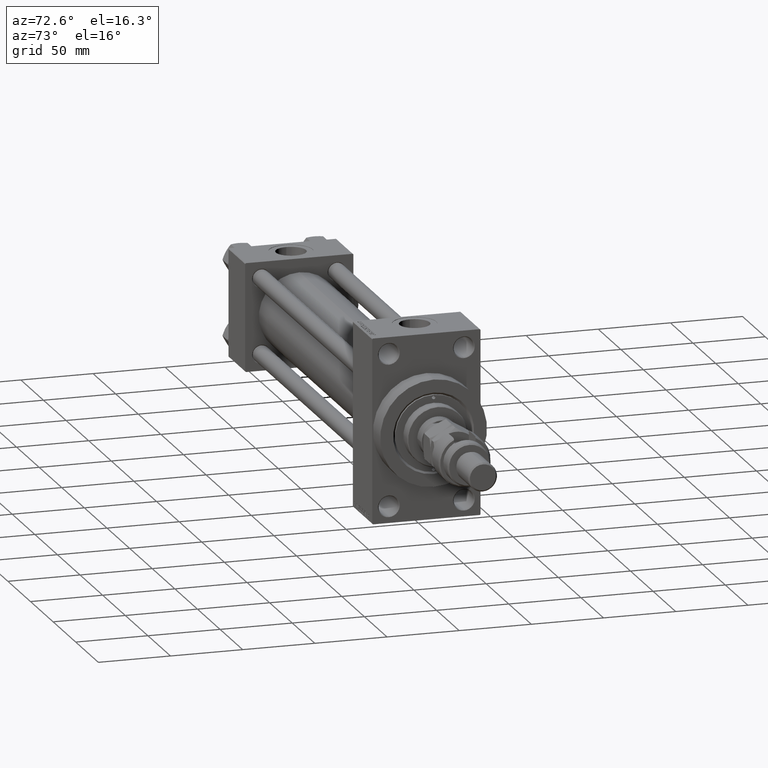
[diagram: clean part render]
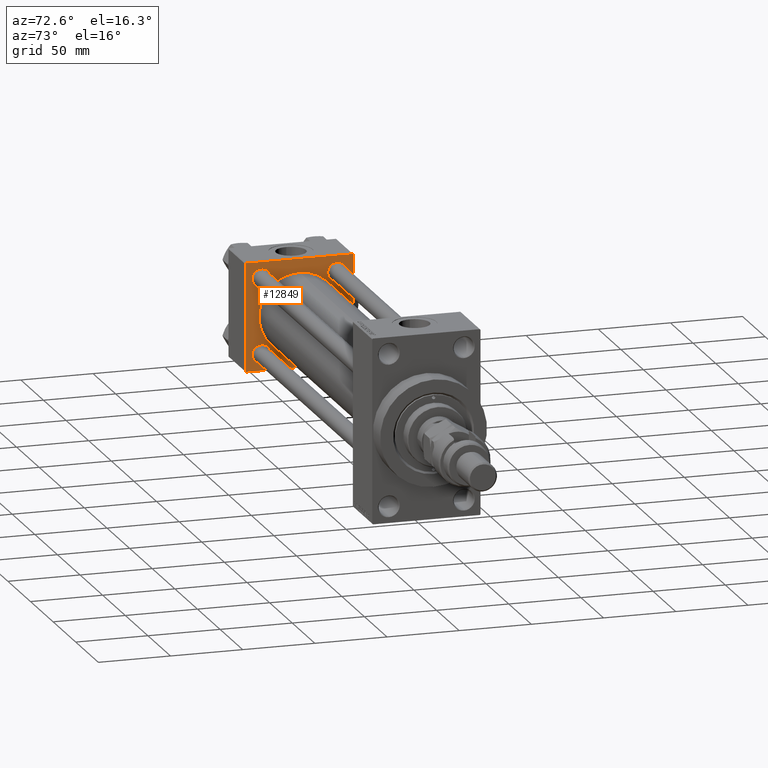
[diagram: same view with one face highlighted and labeled with its STEP entity id]
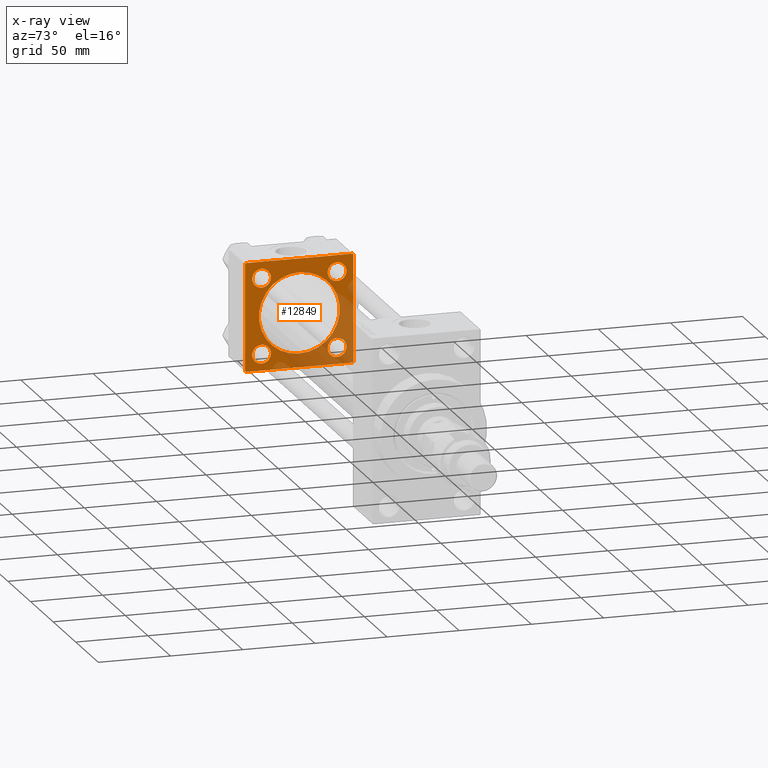
[diagram: x-ray of the same camera — body ghosted, the highlighted face saturated]
A machine part, auxiliary view. The second image highlights one B-rep face of the part: STEP entity #12849.
The next image is the same camera in x-ray: the body ghosted, the highlighted face saturated — about 33% of this face is hidden behind the body in this view.
In plain terms, the highlighted planar face has unit normal (-1, 0, 0).
Its self-contained STEP definition (entity closure, byte-faithful):
#24 = AXIS2_PLACEMENT_3D ( 'NONE', #23532, #48669, #28032 ) ;
#296 = DIRECTION ( 'NONE',  ( 0.000000000000000000, 0.000000000000000000, 1.000000000000000000 ) ) ;
#493 = VECTOR ( 'NONE', #36035, 1000.000000000000000 ) ;
#749 = CIRCLE ( 'NONE', #30319, 6.500000000000057732 ) ;
#1197 = LINE ( 'NONE', #17592, #17490 ) ;
#1862 = EDGE_CURVE ( 'NONE', #45284, #20502, #49439, .T. ) ;
#1983 = VECTOR ( 'NONE', #2555, 1000.000000000000000 ) ;
#2471 = CIRCLE ( 'NONE', #32910, 6.500000000000057732 ) ;
#2555 = DIRECTION ( 'NONE',  ( 0.000000000000000000, -1.000000000000000000, -9.251858538542972814E-17 ) ) ;
#2920 = AXIS2_PLACEMENT_3D ( 'NONE', #24890, #4787, #32571 ) ;
#4179 = AXIS2_PLACEMENT_3D ( 'NONE', #42417, #22563, #14377 ) ;
#4787 = DIRECTION ( 'NONE',  ( -1.000000000000000000, 0.000000000000000000, -0.000000000000000000 ) ) ;
#4897 = FACE_BOUND ( 'NONE', #5803, .T. ) ;
#5096 = VERTEX_POINT ( 'NONE', #46204 ) ;
#5581 = DIRECTION ( 'NONE',  ( 0.000000000000000000, 0.000000000000000000, 1.000000000000000000 ) ) ;
#5803 = EDGE_LOOP ( 'NONE', ( #24297, #37731 ) ) ;
#6024 = CARTESIAN_POINT ( 'NONE',  ( 37.00000000000000711, -2.602085213965210642E-15, 28.00000000000000000 ) ) ;
#6674 = CARTESIAN_POINT ( 'NONE',  ( 37.00000000000000000, -37.00000000000002132, -37.50000000000000711 ) ) ;
#6949 = DIRECTION ( 'NONE',  ( 0.000000000000000000, 0.000000000000000000, 1.000000000000000000 ) ) ;
#6950 = CARTESIAN_POINT ( 'NONE',  ( 37.00000000000000000, -37.50000000000000711, 37.49999999999999289 ) ) ;
#7933 = EDGE_LOOP ( 'NONE', ( #35860, #18497, #52326, #51948, #12821, #43367, #44831, #42524 ) ) ;
#8264 = CARTESIAN_POINT ( 'NONE',  ( 37.00000000000000000, 37.49999999999999289, 37.50000000000000000 ) ) ;
#8818 = CARTESIAN_POINT ( 'NONE',  ( 37.00000000000000000, 37.49999999999999289, -36.99999999999998579 ) ) ;
#9252 = VERTEX_POINT ( 'NONE', #8818 ) ;
#9392 = FACE_BOUND ( 'NONE', #46811, .T. ) ;
#9431 = CIRCLE ( 'NONE', #50846, 6.500000000000064837 ) ;
#10276 = CARTESIAN_POINT ( 'NONE',  ( 37.00000000000000000, 26.14999999999999858, -19.64999999999988844 ) ) ;
#10526 = DIRECTION ( 'NONE',  ( -1.000000000000000000, 0.000000000000000000, -0.000000000000000000 ) ) ;
#10781 = CARTESIAN_POINT ( 'NONE',  ( 37.00000000000000000, -26.14999999999999147, -26.15000000000000924 ) ) ;
#10971 = VERTEX_POINT ( 'NONE', #10276 ) ;
#11204 = VERTEX_POINT ( 'NONE', #20554 ) ;
#11260 = CARTESIAN_POINT ( 'NONE',  ( 37.00000000000000000, 37.49999999999999289, -37.50000000000000000 ) ) ;
#11618 = EDGE_CURVE ( 'NONE', #52020, #14286, #36150, .T. ) ;
#11653 = CARTESIAN_POINT ( 'NONE',  ( 37.00000000000000000, -37.50000000000000000, -37.00000000000003553 ) ) ;
#11683 = CARTESIAN_POINT ( 'NONE',  ( 37.00000000000000711, -2.602085213965210642E-15, 0.000000000000000000 ) ) ;
#11958 = CARTESIAN_POINT ( 'NONE',  ( 37.00000000000000000, -26.14999999999999147, 32.65000000000007674 ) ) ;
#12667 = AXIS2_PLACEMENT_3D ( 'NONE', #30304, #22358, #38497 ) ;
#12821 = ORIENTED_EDGE ( 'NONE', *, *, #42186, .T. ) ;
#12849 = ADVANCED_FACE ( 'NONE', ( #9392, #4897, #37178, #46688, #29758, #18106 ), #34514, .F. ) ;
#12888 = ORIENTED_EDGE ( 'NONE', *, *, #20246, .T. ) ;
#13497 = LINE ( 'NONE', #37305, #19153 ) ;
#13513 = EDGE_CURVE ( 'NONE', #32310, #9252, #29646, .T. ) ;
#14202 = VERTEX_POINT ( 'NONE', #6674 ) ;
#14250 = VECTOR ( 'NONE', #33350, 1000.000000000000000 ) ;
#14286 = VERTEX_POINT ( 'NONE', #22301 ) ;
#14293 = CIRCLE ( 'NONE', #33742, 28.00000000000000000 ) ;
#14377 = DIRECTION ( 'NONE',  ( 0.000000000000000000, 0.000000000000000000, 1.000000000000000000 ) ) ;
#14392 = EDGE_CURVE ( 'NONE', #5096, #45267, #14293, .T. ) ;
#14469 = EDGE_CURVE ( 'NONE', #46924, #48518, #2471, .T. ) ;
#14883 = LINE ( 'NONE', #6950, #32825 ) ;
#15009 = EDGE_CURVE ( 'NONE', #45267, #5096, #43910, .T. ) ;
#15699 = DIRECTION ( 'NONE',  ( -1.000000000000000000, 0.000000000000000000, -0.000000000000000000 ) ) ;
#17010 = DIRECTION ( 'NONE',  ( 0.000000000000000000, 0.000000000000000000, 1.000000000000000000 ) ) ;
#17490 = VECTOR ( 'NONE', #41144, 1000.000000000000000 ) ;
#17586 = EDGE_LOOP ( 'NONE', ( #46417, #18605 ) ) ;
#17592 = CARTESIAN_POINT ( 'NONE',  ( 37.00000000000000000, -37.00000000000002132, -37.50000000000000711 ) ) ;
#18106 = FACE_OUTER_BOUND ( 'NONE', #7933, .T. ) ;
#18364 = ORIENTED_EDGE ( 'NONE', *, *, #28536, .T. ) ;
#18497 = ORIENTED_EDGE ( 'NONE', *, *, #36660, .T. ) ;
#18605 = ORIENTED_EDGE ( 'NONE', *, *, #11618, .T. ) ;
#19153 = VECTOR ( 'NONE', #33343, 1000.000000000000114 ) ;
#19885 = EDGE_CURVE ( 'NONE', #11204, #38028, #14883, .T. ) ;
#20246 = EDGE_CURVE ( 'NONE', #48518, #46924, #749, .T. ) ;
#20502 = VERTEX_POINT ( 'NONE', #26074 ) ;
#20554 = CARTESIAN_POINT ( 'NONE',  ( 37.00000000000000000, -37.50000000000000711, 36.99999999999999289 ) ) ;
#21054 = CARTESIAN_POINT ( 'NONE',  ( 37.00000000000000000, -26.14999999999999147, -19.64999999999995239 ) ) ;
#21225 = AXIS2_PLACEMENT_3D ( 'NONE', #25260, #45640, #30266 ) ;
#22080 = DIRECTION ( 'NONE',  ( -0.000000000000000000, 0.000000000000000000, 1.000000000000000000 ) ) ;
#22149 = CARTESIAN_POINT ( 'NONE',  ( 37.00000000000000000, 37.49999999999999289, 37.00000000000000000 ) ) ;
#22301 = CARTESIAN_POINT ( 'NONE',  ( 37.00000000000000000, -26.14999999999999147, 19.64999999999994529 ) ) ;
#22338 = CARTESIAN_POINT ( 'NONE',  ( 37.00000000000000000, 0.000000000000000000, 0.000000000000000000 ) ) ;
#22358 = DIRECTION ( 'NONE',  ( 1.000000000000000000, -0.000000000000000000, 0.000000000000000000 ) ) ;
#22563 = DIRECTION ( 'NONE',  ( -1.000000000000000000, 0.000000000000000000, -0.000000000000000000 ) ) ;
#22602 = CARTESIAN_POINT ( 'NONE',  ( 37.00000000000000000, -37.50000000000000711, 36.99999999999999289 ) ) ;
#23071 = DIRECTION ( 'NONE',  ( 0.000000000000000000, 9.251858538542971581E-17, -1.000000000000000000 ) ) ;
#23532 = CARTESIAN_POINT ( 'NONE',  ( 37.00000000000000000, 26.14999999999999858, -26.15000000000000213 ) ) ;
#24041 = ORIENTED_EDGE ( 'NONE', *, *, #14392, .F. ) ;
#24297 = ORIENTED_EDGE ( 'NONE', *, *, #26609, .T. ) ;
#24890 = CARTESIAN_POINT ( 'NONE',  ( 37.00000000000000000, 26.14999999999999858, 26.15000000000000213 ) ) ;
#25020 = EDGE_LOOP ( 'NONE', ( #38844, #24041 ) ) ;
#25260 = CARTESIAN_POINT ( 'NONE',  ( 37.00000000000000000, 26.14999999999999858, 26.15000000000000213 ) ) ;
#25662 = CARTESIAN_POINT ( 'NONE',  ( 37.00000000000000000, 37.49999999999999289, 37.50000000000000000 ) ) ;
#25860 = VERTEX_POINT ( 'NONE', #30378 ) ;
#26074 = CARTESIAN_POINT ( 'NONE',  ( 37.00000000000000000, 26.14999999999999858, 19.64999999999988489 ) ) ;
#26609 = EDGE_CURVE ( 'NONE', #25860, #10971, #48201, .T. ) ;
#26648 = DIRECTION ( 'NONE',  ( 0.000000000000000000, 0.000000000000000000, 1.000000000000000000 ) ) ;
#27995 = EDGE_LOOP ( 'NONE', ( #18364, #44660 ) ) ;
#28032 = DIRECTION ( 'NONE',  ( 0.000000000000000000, 0.000000000000000000, 1.000000000000000000 ) ) ;
#28536 = EDGE_CURVE ( 'NONE', #20502, #45284, #42335, .T. ) ;
#28629 = LINE ( 'NONE', #8264, #493 ) ;
#29571 = EDGE_CURVE ( 'NONE', #14286, #52020, #9431, .T. ) ;
#29646 = LINE ( 'NONE', #25662, #14250 ) ;
#29758 = FACE_BOUND ( 'NONE', #25020, .T. ) ;
#30266 = DIRECTION ( 'NONE',  ( 0.000000000000000000, 0.000000000000000000, 1.000000000000000000 ) ) ;
#30304 = CARTESIAN_POINT ( 'NONE',  ( 37.00000000000000711, -2.602085213965210642E-15, 0.000000000000000000 ) ) ;
#30319 = AXIS2_PLACEMENT_3D ( 'NONE', #10781, #43065, #5581 ) ;
#30378 = CARTESIAN_POINT ( 'NONE',  ( 37.00000000000000000, 26.14999999999999858, -32.65000000000011937 ) ) ;
#30630 = CARTESIAN_POINT ( 'NONE',  ( 37.00000000000000000, 26.14999999999999858, -26.15000000000000213 ) ) ;
#31065 = ORIENTED_EDGE ( 'NONE', *, *, #14469, .T. ) ;
#31326 = VERTEX_POINT ( 'NONE', #39503 ) ;
#32310 = VERTEX_POINT ( 'NONE', #22149 ) ;
#32560 = EDGE_CURVE ( 'NONE', #31326, #11204, #50930, .T. ) ;
#32571 = DIRECTION ( 'NONE',  ( 0.000000000000000000, 0.000000000000000000, 1.000000000000000000 ) ) ;
#32825 = VECTOR ( 'NONE', #23071, 1000.000000000000000 ) ;
#32910 = AXIS2_PLACEMENT_3D ( 'NONE', #40525, #37334, #296 ) ;
#33343 = DIRECTION ( 'NONE',  ( 0.000000000000000000, -0.7071067811865474617, 0.7071067811865474617 ) ) ;
#33350 = DIRECTION ( 'NONE',  ( 0.000000000000000000, 0.000000000000000000, -1.000000000000000000 ) ) ;
#33742 = AXIS2_PLACEMENT_3D ( 'NONE', #11683, #35248, #6949 ) ;
#34514 = PLANE ( 'NONE',  #35392 ) ;
#35076 = CARTESIAN_POINT ( 'NONE',  ( 37.00000000000000000, 37.49999999999999289, -36.99999999999998579 ) ) ;
#35248 = DIRECTION ( 'NONE',  ( 1.000000000000000000, -0.000000000000000000, 0.000000000000000000 ) ) ;
#35392 = AXIS2_PLACEMENT_3D ( 'NONE', #22338, #42969, #22080 ) ;
#35860 = ORIENTED_EDGE ( 'NONE', *, *, #36686, .F. ) ;
#36035 = DIRECTION ( 'NONE',  ( 0.000000000000000000, -1.000000000000000000, -9.251858538542971581E-17 ) ) ;
#36150 = CIRCLE ( 'NONE', #4179, 6.500000000000064837 ) ;
#36660 = EDGE_CURVE ( 'NONE', #43667, #9252, #39301, .T. ) ;
#36686 = EDGE_CURVE ( 'NONE', #43667, #14202, #51745, .T. ) ;
#37178 = FACE_BOUND ( 'NONE', #17586, .T. ) ;
#37305 = CARTESIAN_POINT ( 'NONE',  ( 37.00000000000000000, 36.99999999999999289, 37.50000000000000000 ) ) ;
#37334 = DIRECTION ( 'NONE',  ( -1.000000000000000000, 0.000000000000000000, -0.000000000000000000 ) ) ;
#37731 = ORIENTED_EDGE ( 'NONE', *, *, #40557, .T. ) ;
#38028 = VERTEX_POINT ( 'NONE', #11653 ) ;
#38497 = DIRECTION ( 'NONE',  ( 0.000000000000000000, 0.000000000000000000, 1.000000000000000000 ) ) ;
#38844 = ORIENTED_EDGE ( 'NONE', *, *, #15009, .F. ) ;
#39042 = DIRECTION ( 'NONE',  ( -0.000000000000000000, 0.7071067811865474617, 0.7071067811865474617 ) ) ;
#39301 = LINE ( 'NONE', #35076, #51799 ) ;
#39503 = CARTESIAN_POINT ( 'NONE',  ( 37.00000000000000000, -37.00000000000000711, 37.49999999999999289 ) ) ;
#39799 = CARTESIAN_POINT ( 'NONE',  ( 37.00000000000000000, 36.99999999999999289, 37.50000000000000000 ) ) ;
#40525 = CARTESIAN_POINT ( 'NONE',  ( 37.00000000000000000, -26.14999999999999147, -26.15000000000000924 ) ) ;
#40557 = EDGE_CURVE ( 'NONE', #10971, #25860, #49437, .T. ) ;
#40769 = VERTEX_POINT ( 'NONE', #39799 ) ;
#41144 = DIRECTION ( 'NONE',  ( 0.000000000000000000, 0.7071067811865524577, -0.7071067811865426878 ) ) ;
#42186 = EDGE_CURVE ( 'NONE', #40769, #31326, #28629, .T. ) ;
#42335 = CIRCLE ( 'NONE', #21225, 6.500000000000113687 ) ;
#42417 = CARTESIAN_POINT ( 'NONE',  ( 37.00000000000000000, -26.14999999999999147, 26.15000000000000924 ) ) ;
#42524 = ORIENTED_EDGE ( 'NONE', *, *, #45660, .T. ) ;
#42537 = CARTESIAN_POINT ( 'NONE',  ( 37.00000000000000000, -26.14999999999999147, -32.65000000000006963 ) ) ;
#42969 = DIRECTION ( 'NONE',  ( -1.000000000000000000, 0.000000000000000000, -0.000000000000000000 ) ) ;
#43065 = DIRECTION ( 'NONE',  ( -1.000000000000000000, 0.000000000000000000, -0.000000000000000000 ) ) ;
#43367 = ORIENTED_EDGE ( 'NONE', *, *, #32560, .T. ) ;
#43667 = VERTEX_POINT ( 'NONE', #47397 ) ;
#43851 = EDGE_CURVE ( 'NONE', #32310, #40769, #13497, .T. ) ;
#43910 = CIRCLE ( 'NONE', #12667, 28.00000000000000000 ) ;
#44660 = ORIENTED_EDGE ( 'NONE', *, *, #1862, .T. ) ;
#44831 = ORIENTED_EDGE ( 'NONE', *, *, #19885, .T. ) ;
#45193 = CARTESIAN_POINT ( 'NONE',  ( 37.00000000000000000, 26.14999999999999858, 32.65000000000012648 ) ) ;
#45267 = VERTEX_POINT ( 'NONE', #6024 ) ;
#45284 = VERTEX_POINT ( 'NONE', #45193 ) ;
#45640 = DIRECTION ( 'NONE',  ( -1.000000000000000000, 0.000000000000000000, -0.000000000000000000 ) ) ;
#45660 = EDGE_CURVE ( 'NONE', #38028, #14202, #1197, .T. ) ;
#46204 = CARTESIAN_POINT ( 'NONE',  ( 37.00000000000000711, 8.269258236473784371E-16, -28.00000000000000000 ) ) ;
#46417 = ORIENTED_EDGE ( 'NONE', *, *, #29571, .T. ) ;
#46688 = FACE_BOUND ( 'NONE', #27995, .T. ) ;
#46811 = EDGE_LOOP ( 'NONE', ( #12888, #31065 ) ) ;
#46924 = VERTEX_POINT ( 'NONE', #21054 ) ;
#47397 = CARTESIAN_POINT ( 'NONE',  ( 37.00000000000000000, 36.99999999999997868, -37.50000000000000000 ) ) ;
#48201 = CIRCLE ( 'NONE', #24, 6.500000000000113687 ) ;
#48518 = VERTEX_POINT ( 'NONE', #42537 ) ;
#48592 = AXIS2_PLACEMENT_3D ( 'NONE', #30630, #10526, #26648 ) ;
#48669 = DIRECTION ( 'NONE',  ( -1.000000000000000000, 0.000000000000000000, -0.000000000000000000 ) ) ;
#49283 = VECTOR ( 'NONE', #50680, 1000.000000000000114 ) ;
#49437 = CIRCLE ( 'NONE', #48592, 6.500000000000113687 ) ;
#49439 = CIRCLE ( 'NONE', #2920, 6.500000000000113687 ) ;
#50680 = DIRECTION ( 'NONE',  ( -0.000000000000000000, -0.7071067811865474617, -0.7071067811865474617 ) ) ;
#50846 = AXIS2_PLACEMENT_3D ( 'NONE', #51953, #15699, #17010 ) ;
#50930 = LINE ( 'NONE', #22602, #49283 ) ;
#51745 = LINE ( 'NONE', #11260, #1983 ) ;
#51799 = VECTOR ( 'NONE', #39042, 1000.000000000000114 ) ;
#51948 = ORIENTED_EDGE ( 'NONE', *, *, #43851, .T. ) ;
#51953 = CARTESIAN_POINT ( 'NONE',  ( 37.00000000000000000, -26.14999999999999147, 26.15000000000000924 ) ) ;
#52020 = VERTEX_POINT ( 'NONE', #11958 ) ;
#52326 = ORIENTED_EDGE ( 'NONE', *, *, #13513, .F. ) ;